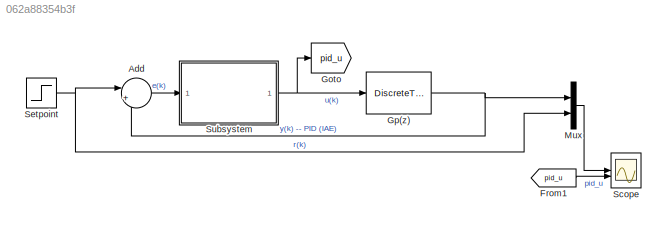
MODEL slx_062a88354b3f
KIND model
CONFIG AbsTol = auto
CONFIG EnableMultiTasking = off
CONFIG FixedStep = auto
CONFIG MaxStep = auto
CONFIG MinStep = auto
CONFIG RelTol = 1e-3
CONFIG SampleTimeConstraint = Unconstrained
CONFIG SolverName = VariableStepAuto
CONFIG StartTime = 0.0
CONFIG StopTime = 10
BLOCK [Sum] Add
  Inputs = |+-
BLOCK [From] From1
  GotoTag = pid_u
BLOCK [Goto] Goto
  GotoTag = pid_u
BLOCK [DiscreteTransferFcn] Gp(z)
  Denominator = Gpz_den
  InputPortMap = u0
  Numerator = Gpz_num
  SampleTime = T
BLOCK [Mux] Mux
  DisplayOption = bar
  Inputs = 2
BLOCK [Scope] Scope
  Floating = off
  NumInputPorts = 2
  ScopeSpecificationString = Simulink.scopes.TimeScopeBlockCfg('CurrentConfiguration', extmgr.ConfigurationSet(extmgr.Configuration('Core','General UI',true),extmgr.Configuration('Core','Source UI',true),extmgr.Configuration('Sources','WiredSimulink',true),extmgr.Configuration('Visuals','Time Domain',true,'SerializedDisplays',{struct('MinYLimReal','-19079477709107927554270157027175906166831570724313213031822311647808296480088...<+3052ch>
BLOCK [Step] Setpoint
  After = 1.5
  SampleTime = T
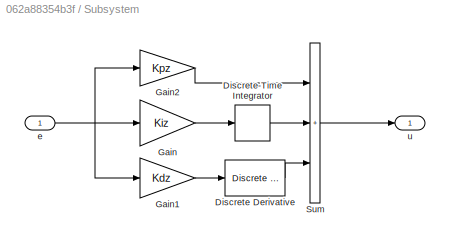
BLOCK [SubSystem] Subsystem
BLOCK [Reference] Subsystem/Discrete Derivative  REF=simulink/Discrete/Discrete Derivative
  SourceBlock = simulink/Discrete/Discrete Derivative
  SourceType = Discrete Derivative
BLOCK [DiscreteIntegrator] Subsystem/Discrete-Time Integrator
  ICPrevOutput = DiscIntNeverNeededParam
  ICPrevScaledInput = DiscIntNeverNeededParam
  InitialConditionSetting = Auto
  SampleTime = T
BLOCK [Gain] Subsystem/Gain
  Gain = Kiz
BLOCK [Gain] Subsystem/Gain1
  Gain = Kdz
BLOCK [Gain] Subsystem/Gain2
  Gain = Kpz
BLOCK [Sum] Subsystem/Sum
  IconShape = rectangular
  Inputs = +++
BLOCK [Inport] Subsystem/e
BLOCK [Outport] Subsystem/u
LINE Add:1 -> Subsystem:1
LINE From1:1 -> Scope:2
NET Gp(z):1 -> Add:2, Mux:1
LINE Mux:1 -> Scope:1
NET Setpoint:1 -> Add:1, Mux:2
LINE Subsystem/Discrete Derivative:1 -> Subsystem/Sum:3
LINE Subsystem/Discrete-Time Integrator:1 -> Subsystem/Sum:2
LINE Subsystem/Gain1:1 -> Subsystem/Discrete Derivative:1
LINE Subsystem/Gain2:1 -> Subsystem/Sum:1
LINE Subsystem/Gain:1 -> Subsystem/Discrete-Time Integrator:1
LINE Subsystem/Sum:1 -> Subsystem/u:1
NET Subsystem/e:1 -> Subsystem/Gain1:1, Subsystem/Gain2:1, Subsystem/Gain:1
NET Subsystem:1 -> Goto:1, Gp(z):1
note: NET lines group one-source signal fan-out (src -> all destinations, sorted); 1:1 wires keep LINE
